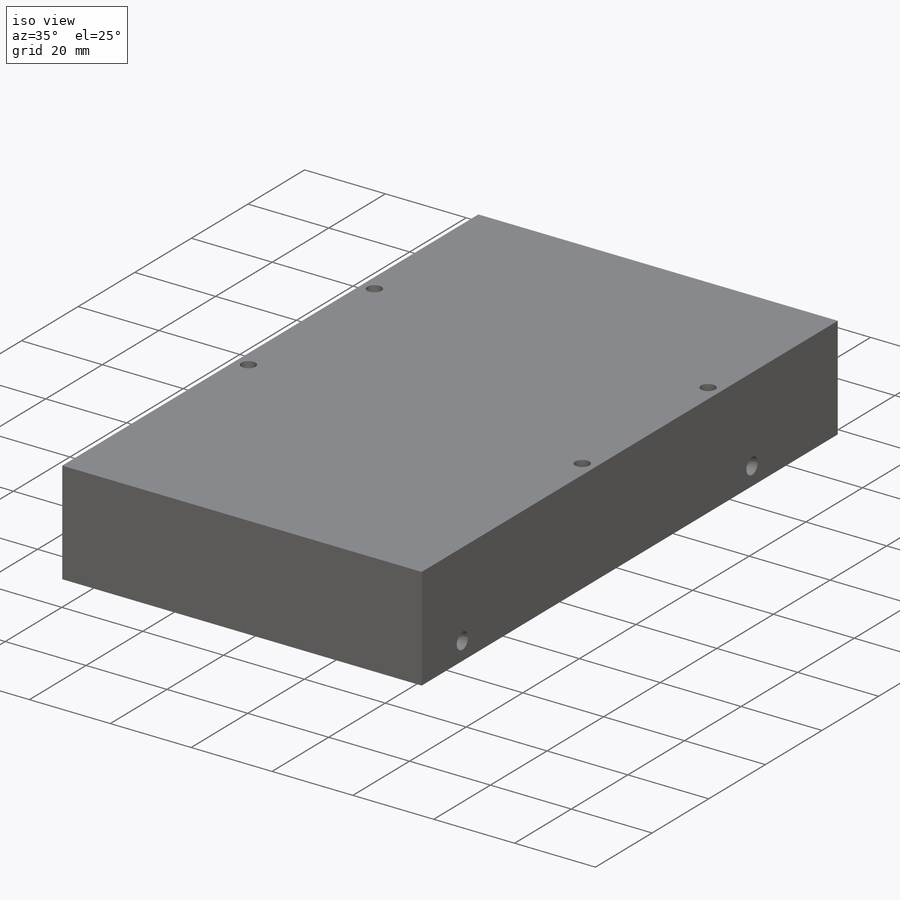
[diagram: iso view]
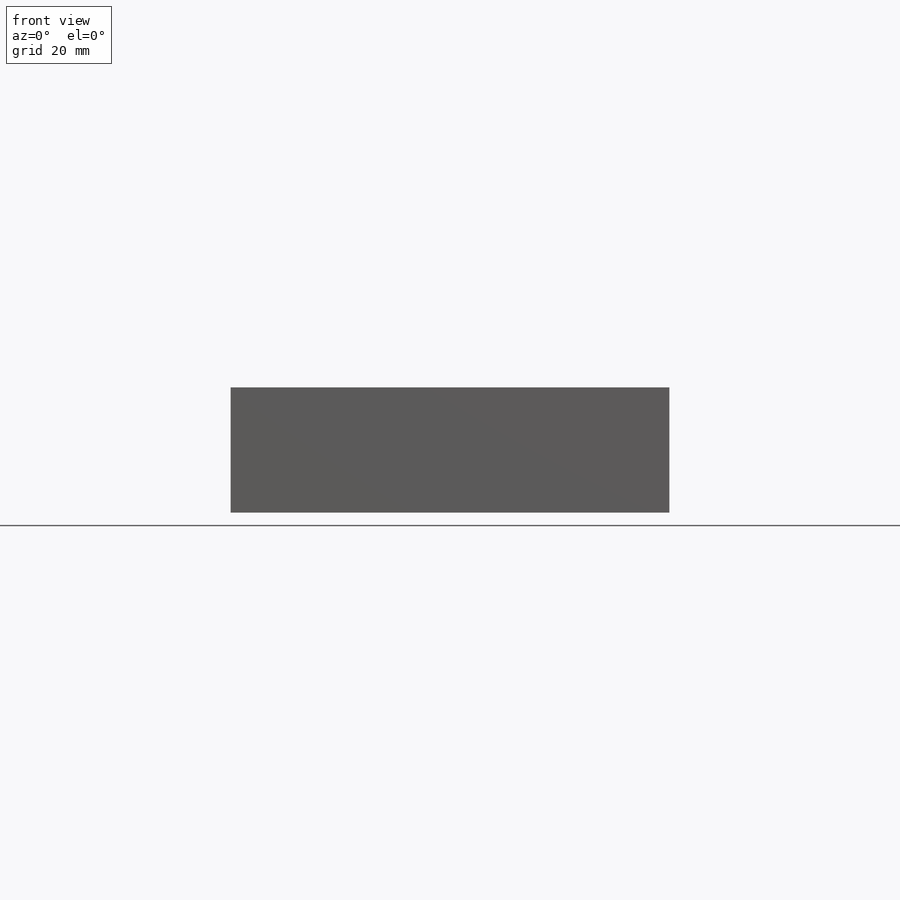
[diagram: front view]
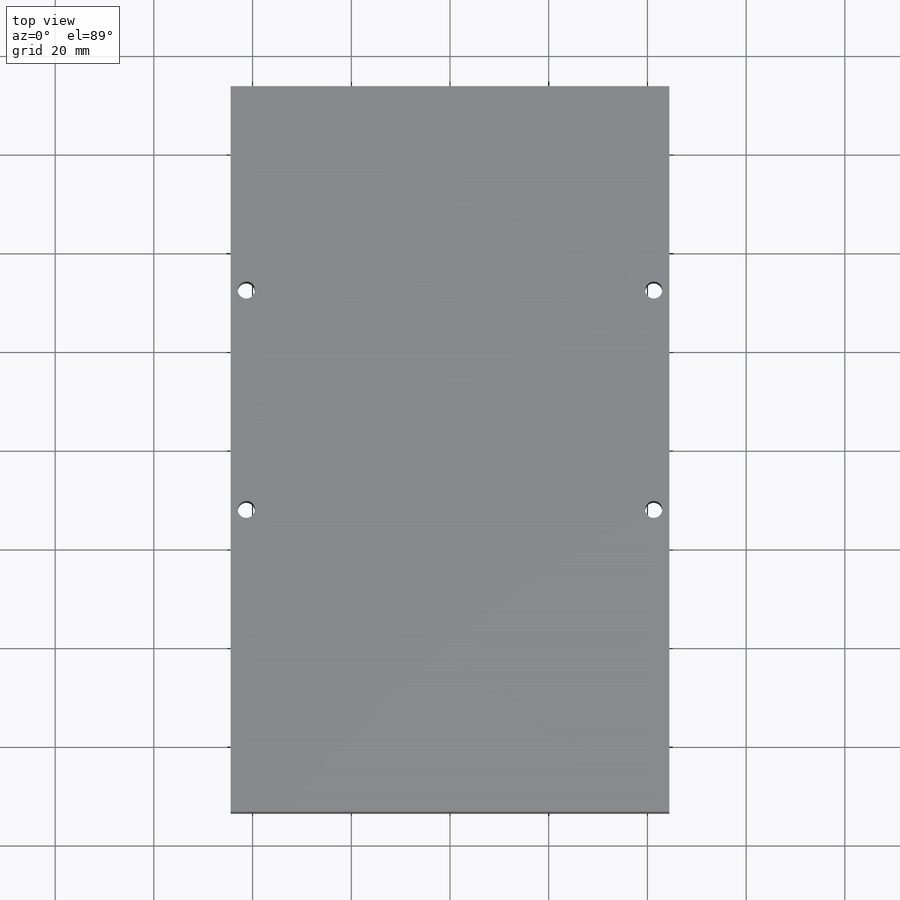
[diagram: top view]
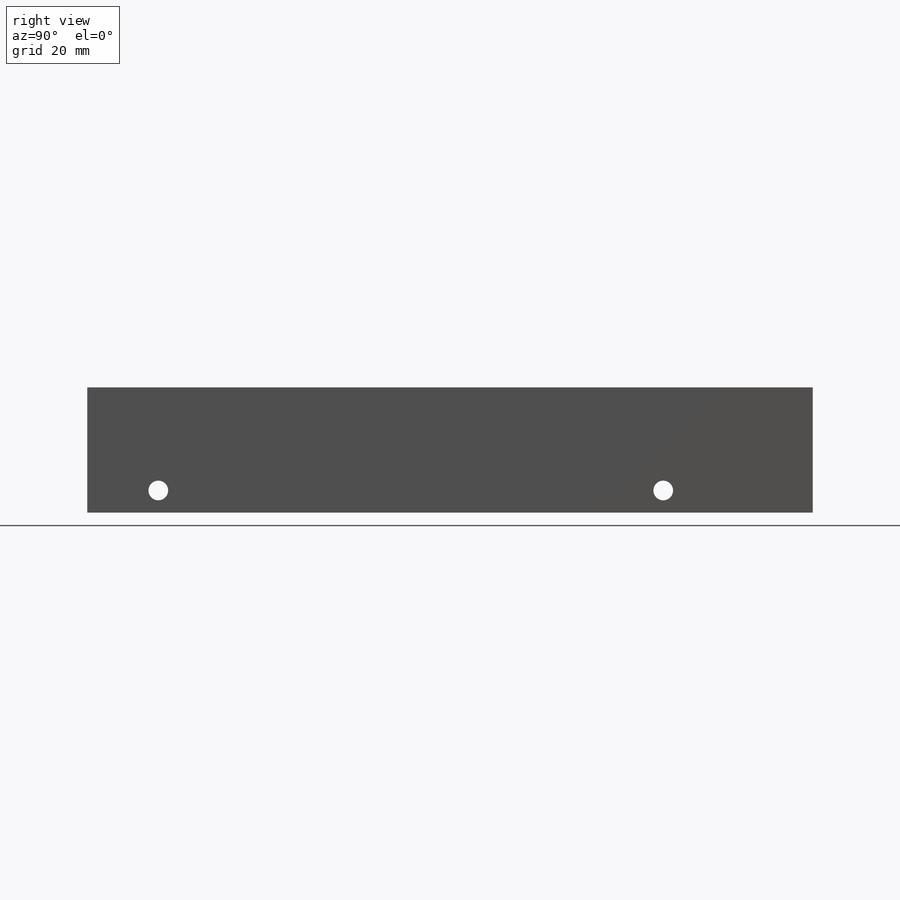
[diagram: right view]
SOLIDWORKS PART (.sldprt)
format: sldprt  version: not decoded by parser v0  size: 157,696 bytes
history: native  units: mm
features: sketch x3, cut_extrude x2, material x1, extrude x1 (+11 scaffold rows collapsed)
feature tree (18):
  scaffold x11  (default folders/planes/origin — collapsed)
  material  "Material <not specified>"
  sketch  "Sketch1"  dims[D1=147.0mm D2=88.9mm]
  extrude  "Boss-Extrude1"  Depth=25.4mm
  sketch  "Sketch2"  dims[D1=~3.48488mm D5=~3.48488mm D8=~3.48488mm D9=~3.48488mm D2=3.18mm D3=41.28mm D4=44.45mm D6=41.28mm D7=44.45mm D10=3.18mm]
  cut_extrude  "Cut-Extrude1"  Depth=30mm
  sketch  "Sketch3"  dims[c1.D1=4.0mm c1.D2=4.0mm c1.D3=4.0mm c1.D4=~4.350522mm c1.D5=4.0mm c2.D2=14.4mm c2.D3=4.5mm c2.D4=~10.141044mm c2.D5=~10.141044mm c3.D4=98.3mm]
  cut_extrude  "Cut-Extrude2"  [1 undecoded]
decode coverage: 5 of 6 modeling features carry decoded parameters
note: ~ marks probable driven/reference dimensions
note: 1 parameter value undecoded
note: suppression state not decoded; provenance and decode notes live in map.json
